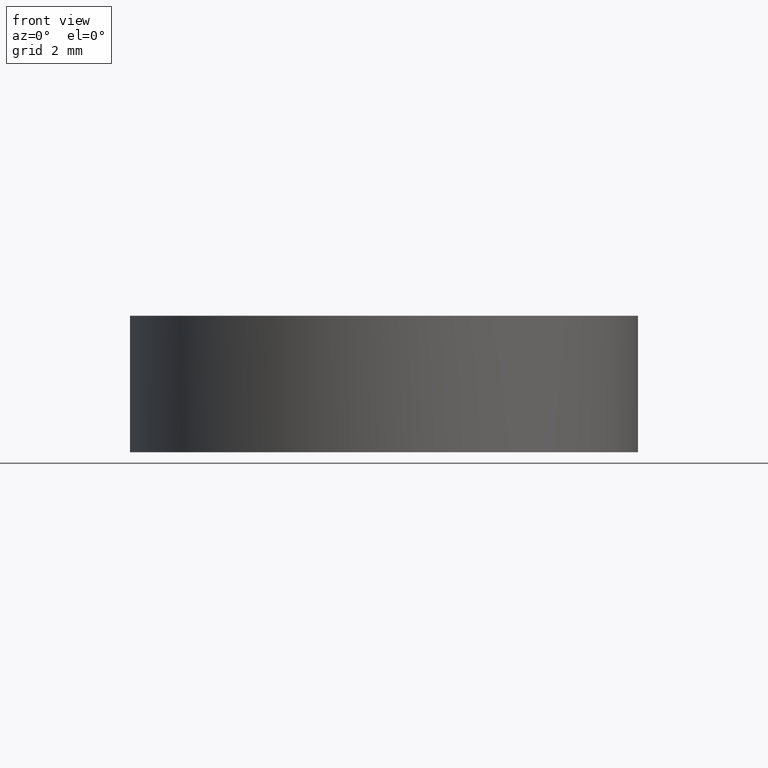
[diagram: clean part render]
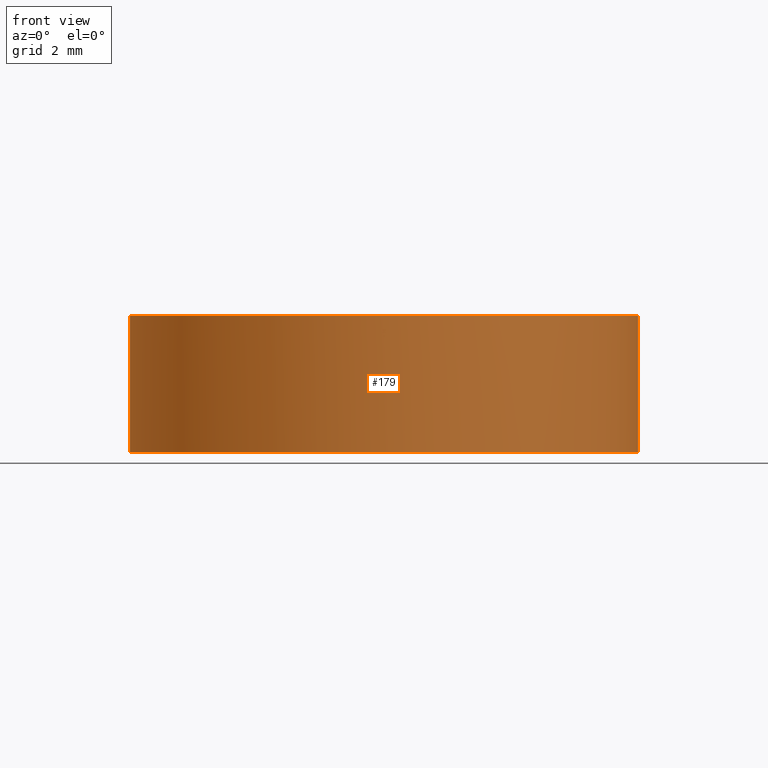
[diagram: same view with one face highlighted and labeled with its STEP entity id]
A machine part, front view. The second image highlights one B-rep face of the part: STEP entity #179.
In plain terms, the highlighted cylindrical surface (partial cylindrical patch) has radius 6.35 mm, axis along (0, 0, 1).
Its self-contained STEP definition (entity closure, byte-faithful):
#5 = ORIENTED_EDGE ( 'NONE', *, *, #100, .T. ) ;
#7 = DIRECTION ( 'NONE',  ( 0.0000000000000000000, 0.0000000000000000000, 1.000000000000000000 ) ) ;
#20 = CARTESIAN_POINT ( 'NONE',  ( 6.349999999999999600, 1.221245327087670000E-015, -0.3116876092362069800 ) ) ;
#21 = LINE ( 'NONE', #224, #140 ) ;
#24 = DIRECTION ( 'NONE',  ( 1.000000000000000000, 0.0000000000000000000, 0.0000000000000000000 ) ) ;
#29 = ORIENTED_EDGE ( 'NONE', *, *, #49, .T. ) ;
#39 = ORIENTED_EDGE ( 'NONE', *, *, #157, .T. ) ;
#45 = CARTESIAN_POINT ( 'NONE',  ( 2.498001805406600200E-016, 1.221245327087670000E-015, -0.3116876092362069800 ) ) ;
#49 = EDGE_CURVE ( 'NONE', #155, #85, #142, .T. ) ;
#51 = VERTEX_POINT ( 'NONE', #86 ) ;
#61 = CIRCLE ( 'NONE', #217, 6.349999999999999600 ) ;
#64 = AXIS2_PLACEMENT_3D ( 'NONE', #45, #152, #233 ) ;
#68 = DIRECTION ( 'NONE',  ( 1.000000000000000000, 0.0000000000000000000, 0.0000000000000000000 ) ) ;
#69 = LINE ( 'NONE', #83, #164 ) ;
#74 = CARTESIAN_POINT ( 'NONE',  ( -6.349999999999999600, 1.998896044546239400E-015, 3.100000000000000500 ) ) ;
#83 = CARTESIAN_POINT ( 'NONE',  ( -6.349999999999999600, 1.998896044546239400E-015, -0.3116876092362069800 ) ) ;
#85 = VERTEX_POINT ( 'NONE', #74 ) ;
#86 = CARTESIAN_POINT ( 'NONE',  ( -6.349999999999999600, 1.998896044546239400E-015, -0.3116876092362069800 ) ) ;
#98 = VERTEX_POINT ( 'NONE', #20 ) ;
#100 = EDGE_CURVE ( 'NONE', #98, #155, #21, .T. ) ;
#104 = EDGE_LOOP ( 'NONE', ( #174, #210, #39, #5, #29 ) ) ;
#105 = AXIS2_PLACEMENT_3D ( 'NONE', #203, #176, #68 ) ;
#118 = DIRECTION ( 'NONE',  ( 0.0000000000000000000, 0.0000000000000000000, 1.000000000000000000 ) ) ;
#132 = FACE_OUTER_BOUND ( 'NONE', #104, .T. ) ;
#138 = DIRECTION ( 'NONE',  ( 0.0000000000000000000, 0.0000000000000000000, 1.000000000000000000 ) ) ;
#140 = VECTOR ( 'NONE', #181, 1000.000000000000000 ) ;
#142 = CIRCLE ( 'NONE', #105, 6.349999999999999600 ) ;
#149 = DIRECTION ( 'NONE',  ( 1.000000000000000000, 0.0000000000000000000, 0.0000000000000000000 ) ) ;
#150 = CYLINDRICAL_SURFACE ( 'NONE', #64, 6.349999999999999600 ) ;
#152 = DIRECTION ( 'NONE',  ( 0.0000000000000000000, 0.0000000000000000000, 1.000000000000000000 ) ) ;
#155 = VERTEX_POINT ( 'NONE', #161 ) ;
#157 = EDGE_CURVE ( 'NONE', #182, #98, #222, .T. ) ;
#160 = CARTESIAN_POINT ( 'NONE',  ( 2.498001805406600200E-016, 1.221245327087670000E-015, -0.3116876092362069800 ) ) ;
#161 = CARTESIAN_POINT ( 'NONE',  ( 6.349999999999999600, 1.221245327087670000E-015, 3.100000000000000500 ) ) ;
#164 = VECTOR ( 'NONE', #118, 1000.000000000000000 ) ;
#167 = AXIS2_PLACEMENT_3D ( 'NONE', #160, #7, #24 ) ;
#171 = CARTESIAN_POINT ( 'NONE',  ( 2.498001805406600200E-016, 1.221245327087670000E-015, -0.3116876092362069800 ) ) ;
#174 = ORIENTED_EDGE ( 'NONE', *, *, #215, .F. ) ;
#176 = DIRECTION ( 'NONE',  ( -0.0000000000000000000, -0.0000000000000000000, -1.000000000000000000 ) ) ;
#179 = ADVANCED_FACE ( 'NONE', ( #132 ), #150, .T. ) ;
#181 = DIRECTION ( 'NONE',  ( 0.0000000000000000000, 0.0000000000000000000, 1.000000000000000000 ) ) ;
#182 = VERTEX_POINT ( 'NONE', #214 ) ;
#199 = EDGE_CURVE ( 'NONE', #51, #182, #61, .T. ) ;
#203 = CARTESIAN_POINT ( 'NONE',  ( 2.498001805406600200E-016, 1.221245327087670000E-015, 3.100000000000000500 ) ) ;
#210 = ORIENTED_EDGE ( 'NONE', *, *, #199, .T. ) ;
#214 = CARTESIAN_POINT ( 'NONE',  ( -1.107300131434371700E-014, -6.349999999999981000, -0.3116876092362075300 ) ) ;
#215 = EDGE_CURVE ( 'NONE', #51, #85, #69, .T. ) ;
#217 = AXIS2_PLACEMENT_3D ( 'NONE', #171, #138, #149 ) ;
#222 = CIRCLE ( 'NONE', #167, 6.349999999999999600 ) ;
#224 = CARTESIAN_POINT ( 'NONE',  ( 6.349999999999999600, 1.221245327087670000E-015, -0.3116876092362069800 ) ) ;
#233 = DIRECTION ( 'NONE',  ( 1.000000000000000000, 0.0000000000000000000, 0.0000000000000000000 ) ) ;